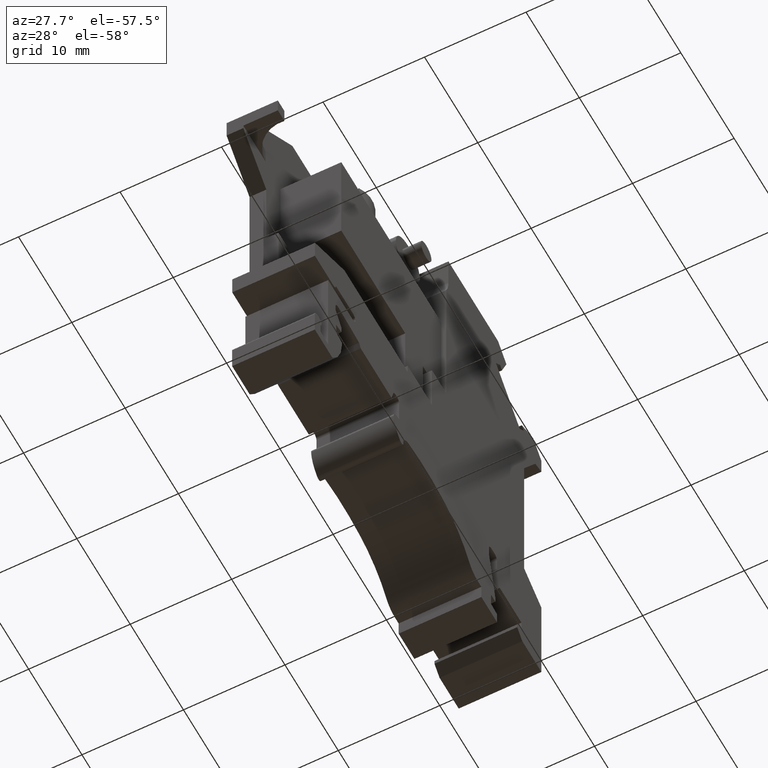
[diagram: clean part render]
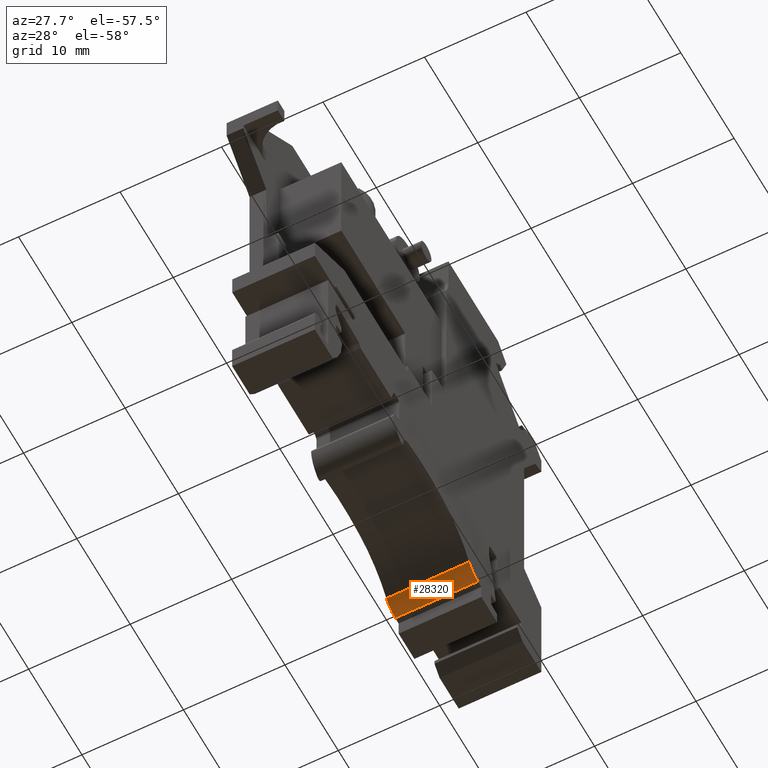
[diagram: same view with one face highlighted and labeled with its STEP entity id]
A machine part, auxiliary view. The second image highlights one B-rep face of the part: STEP entity #28320.
In plain terms, the highlighted cylindrical surface (edge-blend (fillet) strip) has radius 2 mm, axis along (1, 0, 0).
Its self-contained STEP definition (entity closure, byte-faithful):
#4280=CARTESIAN_POINT('',(39.5175548161265,-7.31920221679127,0.));
#4290=VERTEX_POINT('',#4280);
#4320=CARTESIAN_POINT('',(41.1691997327281,-6.19134182229914,0.));
#4330=DIRECTION('',(0.,0.,1.));
#4340=DIRECTION('',(1.,0.,0.));
#4350=AXIS2_PLACEMENT_3D('',#4320,#4330,#4340);
#4360=CIRCLE('',#4350,1.99999999999998);
#4370=CARTESIAN_POINT('',(41.1691997327281,-8.19134182229914,0.));
#4380=VERTEX_POINT('',#4370);
#4390=EDGE_CURVE('',#4290,#4380,#4360,.T.);
#16480=CARTESIAN_POINT('',(41.1691997327281,-8.19134182229914,12.));
#16490=DIRECTION('',(0.,0.,-1.));
#16500=VECTOR('',#16490,1.);
#16510=LINE('',#16480,#16500);
#16520=CARTESIAN_POINT('',(41.1691997327281,-8.19134182229914,8.15));
#16530=VERTEX_POINT('',#16520);
#16540=EDGE_CURVE('',#16530,#4380,#16510,.T.);
#28080=CARTESIAN_POINT('',(41.1691997327281,-6.19134182229914,12.));
#28090=DIRECTION('',(0.,0.,1.));
#28100=DIRECTION('',(1.,0.,0.));
#28110=AXIS2_PLACEMENT_3D('',#28080,#28090,#28100);
#28120=CYLINDRICAL_SURFACE('',#28110,1.99999999999998);
#28130=CARTESIAN_POINT('',(41.1691997327281,-6.19134182229914,8.15));
#28140=DIRECTION('',(0.,0.,1.));
#28150=DIRECTION('',(1.,0.,0.));
#28160=AXIS2_PLACEMENT_3D('',#28130,#28140,#28150);
#28170=CIRCLE('',#28160,1.99999999999998);
#28180=CARTESIAN_POINT('',(39.5175548161265,-7.31920221679126,8.15));
#28190=VERTEX_POINT('',#28180);
#28200=EDGE_CURVE('',#28190,#16530,#28170,.T.);
#28210=ORIENTED_EDGE('',*,*,#28200,.F.);
#28220=ORIENTED_EDGE('',*,*,#16540,.F.);
#28230=ORIENTED_EDGE('',*,*,#4390,.T.);
#28240=CARTESIAN_POINT('',(39.5175548161265,-7.31920221679127,12.));
#28250=DIRECTION('',(0.,0.,-1.));
#28260=VECTOR('',#28250,1.);
#28270=LINE('',#28240,#28260);
#28280=EDGE_CURVE('',#28190,#4290,#28270,.T.);
#28290=ORIENTED_EDGE('',*,*,#28280,.T.);
#28300=EDGE_LOOP('',(#28290,#28230,#28220,#28210));
#28310=FACE_OUTER_BOUND('',#28300,.T.);
#28320=ADVANCED_FACE('',(#28310),#28120,.T.);